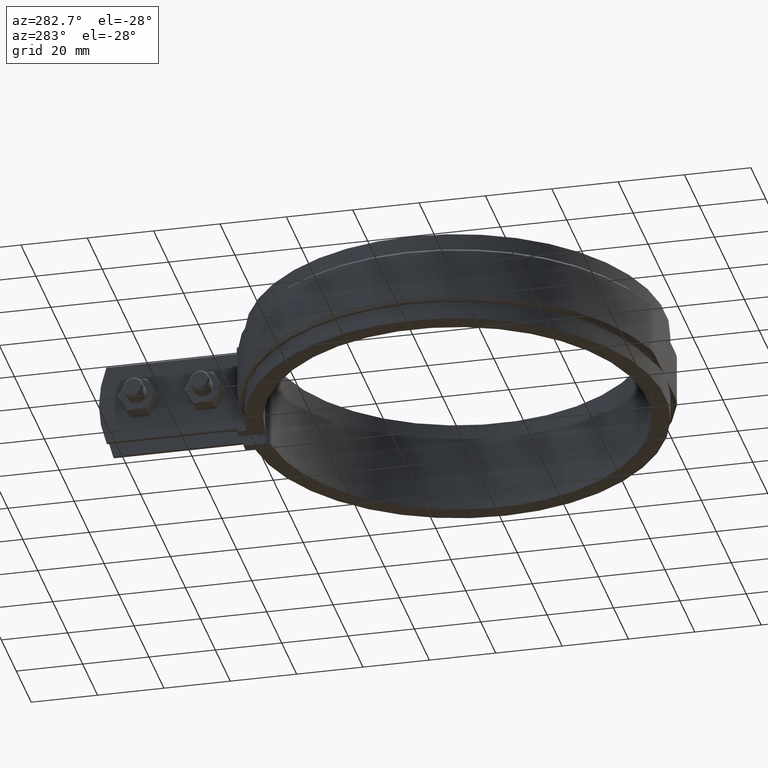
[diagram: clean part render]
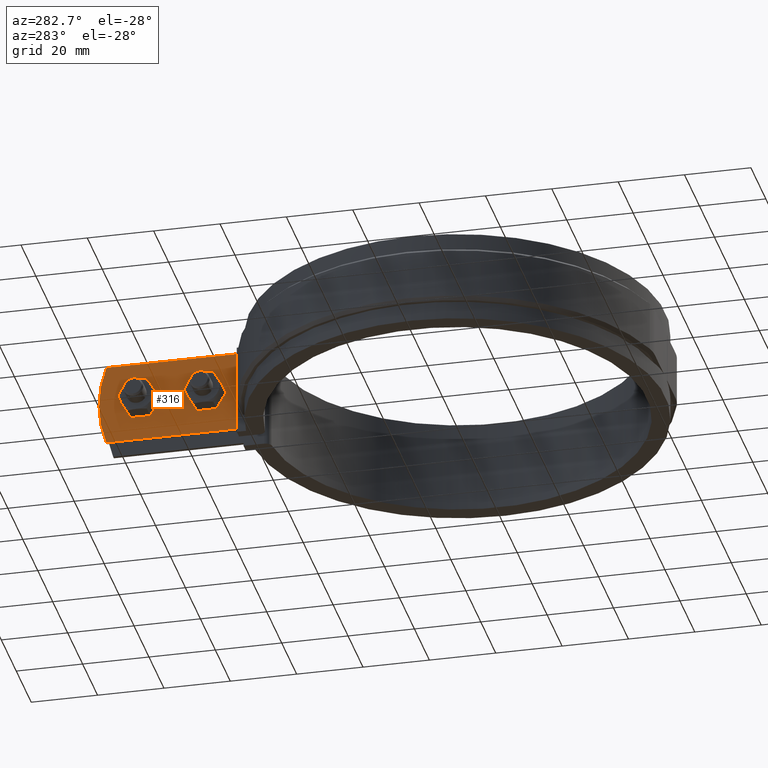
[diagram: same view with one face highlighted and labeled with its STEP entity id]
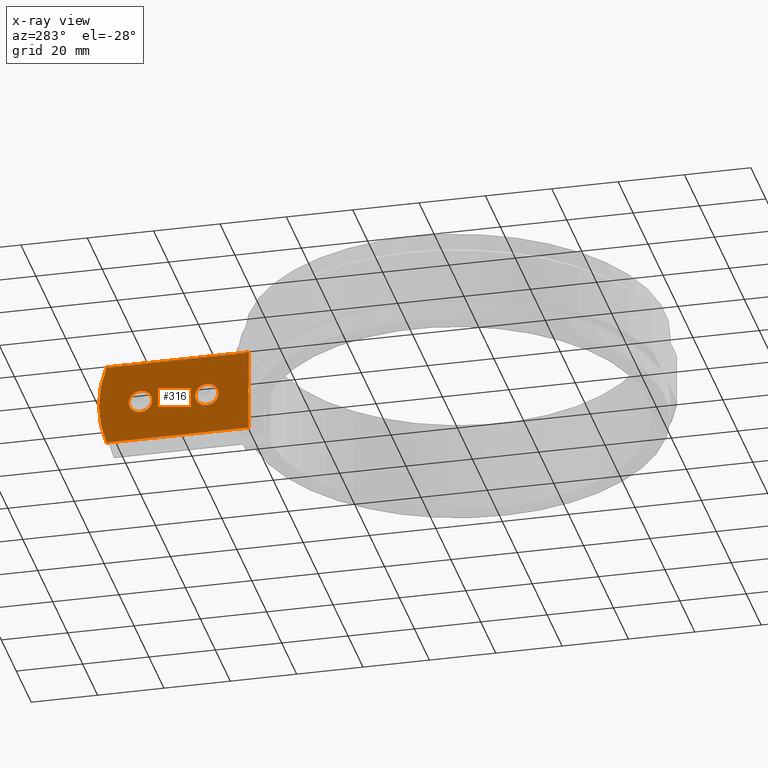
[diagram: x-ray of the same camera — body ghosted, the highlighted face saturated]
A machine part, auxiliary view. The second image highlights one B-rep face of the part: STEP entity #316.
The next image is the same camera in x-ray: the body ghosted, the highlighted face saturated — about 2% of this face is hidden behind the body in this view.
In plain terms, the highlighted planar face has unit normal (-1, 0, 0).
Its self-contained STEP definition (entity closure, byte-faithful):
#316 = ADVANCED_FACE( '', ( #508, #509, #510 ), #511, .T. );
#508 = FACE_OUTER_BOUND( '', #918, .T. );
#509 = FACE_BOUND( '', #919, .T. );
#510 = FACE_BOUND( '', #920, .T. );
#511 = PLANE( '', #921 );
#918 = EDGE_LOOP( '', ( #1885, #1886, #1887, #1888, #1889, #1890 ) );
#919 = EDGE_LOOP( '', ( #1891 ) );
#920 = EDGE_LOOP( '', ( #1892 ) );
#921 = AXIS2_PLACEMENT_3D( '', #1893, #1894, #1895 );
#1885 = ORIENTED_EDGE( '', *, *, #3842, .F. );
#1886 = ORIENTED_EDGE( '', *, *, #3843, .T. );
#1887 = ORIENTED_EDGE( '', *, *, #3844, .F. );
#1888 = ORIENTED_EDGE( '', *, *, #3845, .T. );
#1889 = ORIENTED_EDGE( '', *, *, #3846, .T. );
#1890 = ORIENTED_EDGE( '', *, *, #3847, .T. );
#1891 = ORIENTED_EDGE( '', *, *, #3848, .T. );
#1892 = ORIENTED_EDGE( '', *, *, #3849, .T. );
#1893 = CARTESIAN_POINT( '', ( -4.99999999999999, 106.901825964847, -12.5000000000000 ) );
#1894 = DIRECTION( '', ( -1.00000000000000, 6.16283340149655E-017, 0.000000000000000 ) );
#1895 = DIRECTION( '', ( 6.16283340149655E-017, 1.00000000000000, 0.000000000000000 ) );
#3842 = EDGE_CURVE( '', #4330, #4331, #4332, .T. );
#3843 = EDGE_CURVE( '', #4330, #4333, #4334, .T. );
#3844 = EDGE_CURVE( '', #4335, #4333, #4336, .T. );
#3845 = EDGE_CURVE( '', #4335, #4337, #4338, .T. );
#3846 = EDGE_CURVE( '', #4337, #4339, #4340, .T. );
#3847 = EDGE_CURVE( '', #4339, #4331, #4341, .T. );
#3848 = EDGE_CURVE( '', #4342, #4342, #4343, .F. );
#3849 = EDGE_CURVE( '', #4344, #4344, #4345, .F. );
#4330 = VERTEX_POINT( '', #5137 );
#4331 = VERTEX_POINT( '', #5138 );
#4332 = B_SPLINE_CURVE_WITH_KNOTS( '', 3, ( #5139, #5140, #5141, #5142, #5143, #5144, #5145, #5146 ), .UNSPECIFIED., .F., .F., ( 4, 2, 2, 4 ), ( 1.08420217248550E-018, 0.00149837378309858, 0.00224756067464786, 0.00299674756619715 ), .UNSPECIFIED. );
#4333 = VERTEX_POINT( '', #5147 );
#4334 = LINE( '', #5148, #5149 );
#4335 = VERTEX_POINT( '', #5150 );
#4336 = LINE( '', #5151, #5152 );
#4337 = VERTEX_POINT( '', #5153 );
#4338 = CIRCLE( '', #5154, 36.0000000000000 );
#4339 = VERTEX_POINT( '', #5155 );
#4340 = LINE( '', #5156, #5157 );
#4341 = LINE( '', #5158, #5159 );
#4342 = VERTEX_POINT( '', #5160 );
#4343 = CIRCLE( '', #5161, 3.50000000000000 );
#4344 = VERTEX_POINT( '', #5162 );
#4345 = CIRCLE( '', #5163, 3.50000000000000 );
#5137 = CARTESIAN_POINT( '', ( -5.00000000000000, 61.7545342464826, 1.49291615203450 ) );
#5138 = CARTESIAN_POINT( '', ( -5.00000000000000, 61.7545342464826, -1.49291615203037 ) );
#5139 = CARTESIAN_POINT( '', ( -5.00000000000000, 61.7545342464827, 1.49291615203450 ) );
#5140 = CARTESIAN_POINT( '', ( -5.00000000000000, 61.8820440775209, 1.00264306649433 ) );
#5141 = CARTESIAN_POINT( '', ( -4.99999999999999, 61.9470027373306, 0.506944265549547 ) );
#5142 = CARTESIAN_POINT( '', ( -4.99999999999999, 61.9477448830672, -0.244991374822462 ) );
#5143 = CARTESIAN_POINT( '', ( -4.99999999999999, 61.9313736301201, -0.498454618099280 ) );
#5144 = CARTESIAN_POINT( '', ( -4.99999999999999, 61.8665441762539, -0.999736569767021 ) );
#5145 = CARTESIAN_POINT( '', ( -5.00000000000000, 61.8183196193486, -1.24766250129076 ) );
#5146 = CARTESIAN_POINT( '', ( -5.00000000000000, 61.7545342464827, -1.49291615203037 ) );
#5147 = CARTESIAN_POINT( '', ( -5.00000000000000, 61.7545342464826, 12.5000000000000 ) );
#5148 = CARTESIAN_POINT( '', ( -5.00000000000000, 61.7545342464826, -12.5000000000000 ) );
#5149 = VECTOR( '', #8036, 1000.00000000000 );
#5150 = CARTESIAN_POINT( '', ( -4.99999999999999, 104.662009613637, 12.5000000000000 ) );
#5151 = CARTESIAN_POINT( '', ( -4.99999999999999, 106.901825964847, 12.5000000000000 ) );
#5152 = VECTOR( '', #8037, 1000.00000000000 );
#5153 = CARTESIAN_POINT( '', ( -4.99999999999999, 104.662009613637, -12.5000000000000 ) );
#5154 = AXIS2_PLACEMENT_3D( '', #8038, #8039, #8040 );
#5155 = CARTESIAN_POINT( '', ( -5.00000000000000, 61.7545342464826, -12.5000000000000 ) );
#5156 = CARTESIAN_POINT( '', ( -4.99999999999999, 106.901825964847, -12.5000000000000 ) );
#5157 = VECTOR( '', #8041, 1000.00000000000 );
#5158 = CARTESIAN_POINT( '', ( -5.00000000000000, 61.7545342464826, -12.5000000000000 ) );
#5159 = VECTOR( '', #8042, 1000.00000000000 );
#5160 = CARTESIAN_POINT( '', ( -4.99999999999999, 90.9018259648470, -1.73472347597681E-015 ) );
#5161 = AXIS2_PLACEMENT_3D( '', #8043, #8044, #8045 );
#5162 = CARTESIAN_POINT( '', ( -4.99999999999999, 70.9018259648470, -1.73472347597681E-015 ) );
#5163 = AXIS2_PLACEMENT_3D( '', #8046, #8047, #8048 );
#8036 = DIRECTION( '', ( 0.000000000000000, 0.000000000000000, 1.00000000000000 ) );
#8037 = DIRECTION( '', ( -6.16283340149655E-017, -1.00000000000000, 0.000000000000000 ) );
#8038 = CARTESIAN_POINT( '', ( -5.00000000000000, 70.9018259648470, -2.77555756156289E-014 ) );
#8039 = DIRECTION( '', ( -1.00000000000000, 6.16283340149655E-017, 0.000000000000000 ) );
#8040 = DIRECTION( '', ( -6.16283340149655E-017, -1.00000000000000, 0.000000000000000 ) );
#8041 = DIRECTION( '', ( -6.16283340149655E-017, -1.00000000000000, 0.000000000000000 ) );
#8042 = DIRECTION( '', ( 0.000000000000000, 0.000000000000000, 1.00000000000000 ) );
#8043 = CARTESIAN_POINT( '', ( -4.99999999999999, 94.4018259648470, -1.73472347597681E-015 ) );
#8044 = DIRECTION( '', ( -1.00000000000000, 6.16283340149655E-017, 0.000000000000000 ) );
#8045 = DIRECTION( '', ( -6.16283340149655E-017, -1.00000000000000, 0.000000000000000 ) );
#8046 = CARTESIAN_POINT( '', ( -4.99999999999999, 74.4018259648470, -1.73472347597681E-015 ) );
#8047 = DIRECTION( '', ( -1.00000000000000, 6.16283340149655E-017, 0.000000000000000 ) );
#8048 = DIRECTION( '', ( -6.16283340149655E-017, -1.00000000000000, 0.000000000000000 ) );